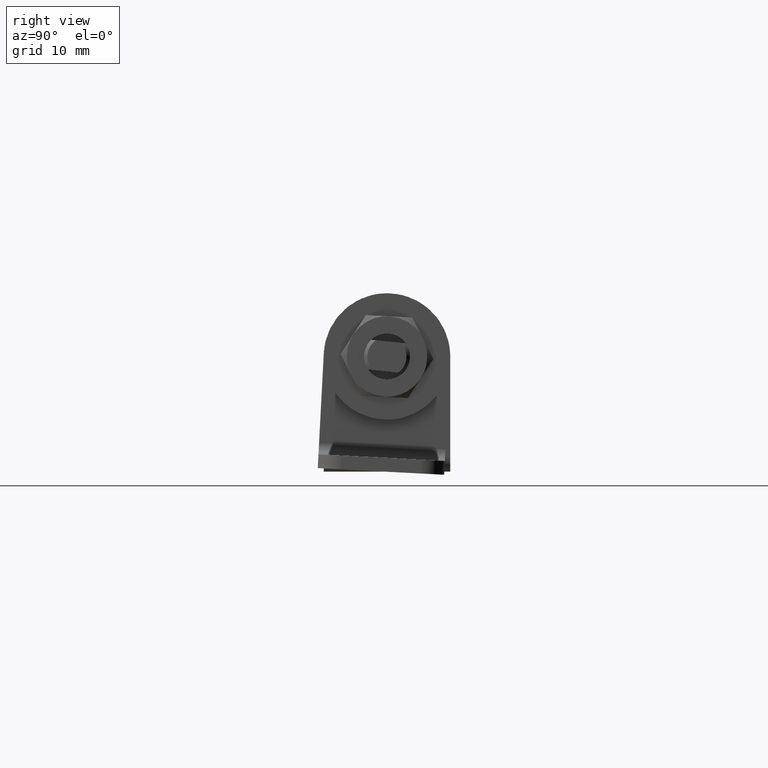
[diagram: clean part render]
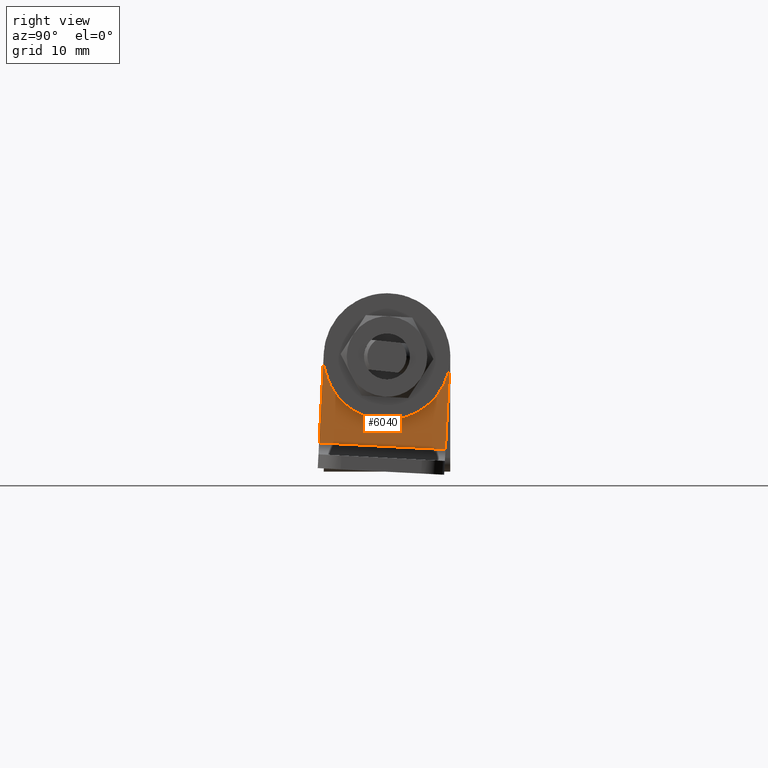
[diagram: same view with one face highlighted and labeled with its STEP entity id]
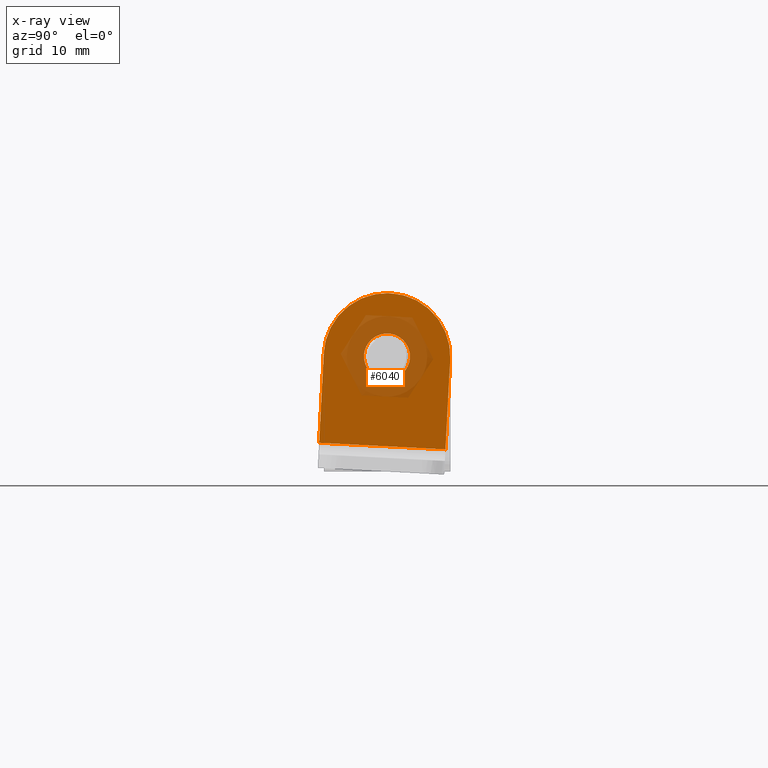
[diagram: x-ray of the same camera — body ghosted, the highlighted face saturated]
A machine part, right view. The second image highlights one B-rep face of the part: STEP entity #6040.
The next image is the same camera in x-ray: the body ghosted, the highlighted face saturated — about 25% of this face is hidden behind the body in this view.
In plain terms, the highlighted face is a freeform B-spline surface patch.
Its self-contained STEP definition (entity closure, byte-faithful):
#5815=CARTESIAN_POINT('',(1.199999999999980,-8.526513E-014,1.999999999999976));
#5816=VERTEX_POINT('',#5815);
#5817=CARTESIAN_POINT('',(1.199999999999980,-1.993834667464751,0.156918191475512));
#5818=VERTEX_POINT('',#5817);
#5819=CARTESIAN_POINT('',(1.199999999999980,-8.526513E-014,1.999999999999976));
#5820=CARTESIAN_POINT('',(1.199999999999980,-1.848780983298039,1.999999999999977));
#5821=CARTESIAN_POINT('',(1.199999999999980,-1.993834667464752,0.156918191475512));
#5829=(BOUNDED_CURVE()B_SPLINE_CURVE(2,(#5819,#5820,#5821),.UNSPECIFIED.,.F.,.U.)B_SPLINE_CURVE_WITH_KNOTS((3,3),(0.0,0.236331300631063),.UNSPECIFIED.)CURVE()GEOMETRIC_REPRESENTATION_ITEM()RATIONAL_B_SPLINE_CURVE((1.0,0.723120658607193,0.969723356168259))REPRESENTATION_ITEM(''));
#5830=EDGE_CURVE('',#5816,#5818,#5829,.T.);
#5871=CARTESIAN_POINT('',(1.199999999999980,1.993834667464581,-0.156918191475500));
#5872=VERTEX_POINT('',#5871);
#5878=CARTESIAN_POINT('',(1.199999999999980,1.993834667464581,-0.156918191475501));
#5879=CARTESIAN_POINT('',(1.199999999999980,1.999999999999885,-0.078580214025287));
#5880=CARTESIAN_POINT('',(1.199999999999980,1.999999999999885,6.238789E-015));
#5881=CARTESIAN_POINT('',(1.199999999999980,1.999999999999884,1.999999999999976));
#5882=CARTESIAN_POINT('',(1.199999999999980,-8.526513E-014,1.999999999999976));
#5890=(BOUNDED_CURVE()B_SPLINE_CURVE(2,(#5878,#5879,#5880,#5881,#5882),.UNSPECIFIED.,.F.,.U.)B_SPLINE_CURVE_WITH_KNOTS((3,2,3),(0.736331300631063,0.750000000000000,1.0),.UNSPECIFIED.)CURVE()GEOMETRIC_REPRESENTATION_ITEM()RATIONAL_B_SPLINE_CURVE((0.969723356168259,0.983986122579354,1.0,0.707106781186547,1.0))REPRESENTATION_ITEM(''));
#5891=EDGE_CURVE('',#5872,#5816,#5890,.T.);
#5914=CARTESIAN_POINT('',(1.199999999999980,-8.526513E-014,-1.999999999999964));
#5915=VERTEX_POINT('',#5914);
#5916=CARTESIAN_POINT('',(1.199999999999980,-1.993834667464752,0.156918191475512));
#5917=CARTESIAN_POINT('',(1.199999999999980,-2.000000000000056,0.078580214025300));
#5918=CARTESIAN_POINT('',(1.199999999999980,-2.000000000000056,6.238789E-015));
#5919=CARTESIAN_POINT('',(1.199999999999980,-2.000000000000055,-1.999999999999963));
#5920=CARTESIAN_POINT('',(1.199999999999980,-8.526513E-014,-1.999999999999964));
#5928=(BOUNDED_CURVE()B_SPLINE_CURVE(2,(#5916,#5917,#5918,#5919,#5920),.UNSPECIFIED.,.F.,.U.)B_SPLINE_CURVE_WITH_KNOTS((3,2,3),(0.236331300631063,0.250000000000000,0.500000000000000),.UNSPECIFIED.)CURVE()GEOMETRIC_REPRESENTATION_ITEM()RATIONAL_B_SPLINE_CURVE((0.969723356168259,0.983986122579354,1.0,0.707106781186547,1.0))REPRESENTATION_ITEM(''));
#5929=EDGE_CURVE('',#5818,#5915,#5928,.T.);
#5931=CARTESIAN_POINT('',(1.199999999999980,-8.526513E-014,-1.999999999999964));
#5932=CARTESIAN_POINT('',(1.199999999999980,1.848780983297868,-1.999999999999964));
#5933=CARTESIAN_POINT('',(1.199999999999980,1.993834667464581,-0.156918191475501));
#5941=(BOUNDED_CURVE()B_SPLINE_CURVE(2,(#5931,#5932,#5933),.UNSPECIFIED.,.F.,.U.)B_SPLINE_CURVE_WITH_KNOTS((3,3),(0.500000000000000,0.736331300631063),.UNSPECIFIED.)CURVE()GEOMETRIC_REPRESENTATION_ITEM()RATIONAL_B_SPLINE_CURVE((1.0,0.723120658607193,0.969723356168259))REPRESENTATION_ITEM(''));
#5942=EDGE_CURVE('',#5915,#5872,#5941,.T.);
#5979=CARTESIAN_POINT('',(1.200000000000000,-6.469770568954353,6.170266928475721));
#5980=CARTESIAN_POINT('',(1.200000000000000,6.061552045649859,6.170266928475721));
#5981=CARTESIAN_POINT('',(1.200000000000000,-6.469770568954353,-8.754961109170518));
#5982=CARTESIAN_POINT('',(1.200000000000000,6.061552045649859,-8.754961109170518));
#5983=B_SPLINE_SURFACE_WITH_KNOTS('',1,1,((#5979,#5981),(#5980,#5982)),.UNSPECIFIED.,.F.,.F.,.U.,(2,2),(2,2),(0.0,12.531322614604210),(0.0,14.925228037646241),.UNSPECIFIED.);
#5984=CARTESIAN_POINT('',(1.199999999999980,-5.492462441150230,0.287847759334706));
#5985=VERTEX_POINT('',#5984);
#5986=CARTESIAN_POINT('',(1.200000000000000,-5.900682899845130,-7.501462611749579));
#5987=VERTEX_POINT('',#5986);
#5988=CARTESIAN_POINT('',(1.199999999999980,-5.492462441150230,0.287847759334706));
#5989=CARTESIAN_POINT('',(1.200000000000000,-5.900682899845130,-7.501462611749579));
#5990=QUASI_UNIFORM_CURVE('',1,(#5988,#5989),.UNSPECIFIED.,.F.,.U.);
#5991=EDGE_CURVE('',#5985,#5987,#5990,.T.);
#5992=ORIENTED_EDGE('',*,*,#5991,.T.);
#5993=CARTESIAN_POINT('',(1.200000000000000,5.084241982455130,-8.077158130421958));
#5994=VERTEX_POINT('',#5993);
#5995=CARTESIAN_POINT('',(1.200000000000000,-5.900682899845130,-7.501462611749579));
#5996=CARTESIAN_POINT('',(1.200000000000000,5.084241982455130,-8.077158130421958));
#5997=QUASI_UNIFORM_CURVE('',1,(#5995,#5996),.UNSPECIFIED.,.F.,.U.);
#5998=EDGE_CURVE('',#5987,#5994,#5997,.T.);
#5999=ORIENTED_EDGE('',*,*,#5998,.T.);
#6000=CARTESIAN_POINT('',(1.199999999999980,5.492462441150150,-0.287847759336289));
#6001=VERTEX_POINT('',#6000);
#6002=CARTESIAN_POINT('',(1.200000000000000,5.084241982455130,-8.077158130421958));
#6003=CARTESIAN_POINT('',(1.199999999999980,5.492462441150150,-0.287847759336289));
#6004=QUASI_UNIFORM_CURVE('',1,(#6002,#6003),.UNSPECIFIED.,.F.,.U.);
#6005=EDGE_CURVE('',#5994,#6001,#6004,.T.);
#6006=ORIENTED_EDGE('',*,*,#6005,.T.);
#6007=CARTESIAN_POINT('',(1.199999999999980,5.492462441150150,-0.287847759336289));
#6008=CARTESIAN_POINT('',(1.199999999999981,5.517321190434377,0.183971566583574));
#6009=CARTESIAN_POINT('',(1.199999999999978,5.449502579043799,1.066092037444609));
#6010=CARTESIAN_POINT('',(1.199999999999979,5.076893918704983,2.206463427380975));
#6011=CARTESIAN_POINT('',(1.199999999999982,4.523588344618726,3.190699071669840));
#6012=CARTESIAN_POINT('',(1.199999999999979,3.860788661590280,3.964188572820939));
#6013=CARTESIAN_POINT('',(1.199999999999981,3.171926591574669,4.512184482704778));
#6014=CARTESIAN_POINT('',(1.199999999999978,2.535596722232655,4.896432892767352));
#6015=CARTESIAN_POINT('',(1.199999999999980,1.917772936518239,5.172710135679365));
#6016=CARTESIAN_POINT('',(1.199999999999992,1.139161014765988,5.401283102476656));
#6017=CARTESIAN_POINT('',(1.199999999999960,0.423460084117575,5.500866115404524));
#6018=CARTESIAN_POINT('',(1.199999999999986,-0.432496495438978,5.503684294527466));
#6019=CARTESIAN_POINT('',(1.199999999999986,-1.260289630017896,5.383673158153290));
#6020=CARTESIAN_POINT('',(1.199999999999966,-2.116706134485637,5.097987988902927));
#6021=CARTESIAN_POINT('',(1.200000000000007,-2.881009279429175,4.710538952584193));
#6022=CARTESIAN_POINT('',(1.199999999999977,-3.541415600222644,4.236481759499088));
#6023=CARTESIAN_POINT('',(1.199999999999970,-4.152998545801984,3.636284057802248));
#6024=CARTESIAN_POINT('',(1.199999999999987,-4.684004560574455,2.934244507716562));
#6025=CARTESIAN_POINT('',(1.199999999999979,-5.108273059639441,2.110763781346652));
#6026=CARTESIAN_POINT('',(1.199999999999980,-5.391930767750628,1.206257429469560));
#6027=CARTESIAN_POINT('',(1.199999999999981,-5.476005679325619,0.602394113808619));
#6028=CARTESIAN_POINT('',(1.199999999999980,-5.492462441150230,0.287847759334706));
#6029=B_SPLINE_CURVE_WITH_KNOTS('',3,(#6007,#6008,#6009,#6010,#6011,#6012,#6013,#6014,#6015,#6016,#6017,#6018,#6019,#6020,#6021,#6022,#6023,#6024,#6025,#6026,#6027,#6028),.UNSPECIFIED.,.F.,.U.,(4,1,1,1,1,1,1,1,1,1,1,1,1,1,1,1,1,1,1,4),(0.000000042899426,1.417389523958358,2.632311059165467,3.577260748526195,4.792190768035122,5.669645955043871,6.209603801011218,7.019554183738062,7.694520009997289,8.639434529369266,9.179393466952607,10.259301142136851,11.136757168986000,11.879221538557530,12.824158755173331,13.566616759521599,14.444065315714630,15.456515961277560,16.333938818046288,17.278868011689681),.UNSPECIFIED.);
#6030=EDGE_CURVE('',#6001,#5985,#6029,.T.);
#6031=ORIENTED_EDGE('',*,*,#6030,.T.);
#6032=EDGE_LOOP('',(#5992,#5999,#6006,#6031));
#6033=FACE_OUTER_BOUND('',#6032,.T.);
#6034=ORIENTED_EDGE('',*,*,#5942,.F.);
#6035=ORIENTED_EDGE('',*,*,#5929,.F.);
#6036=ORIENTED_EDGE('',*,*,#5830,.F.);
#6037=ORIENTED_EDGE('',*,*,#5891,.F.);
#6038=EDGE_LOOP('',(#6034,#6035,#6036,#6037));
#6039=FACE_BOUND('',#6038,.T.);
#6040=ADVANCED_FACE('',(#6033,#6039),#5983,.F.);